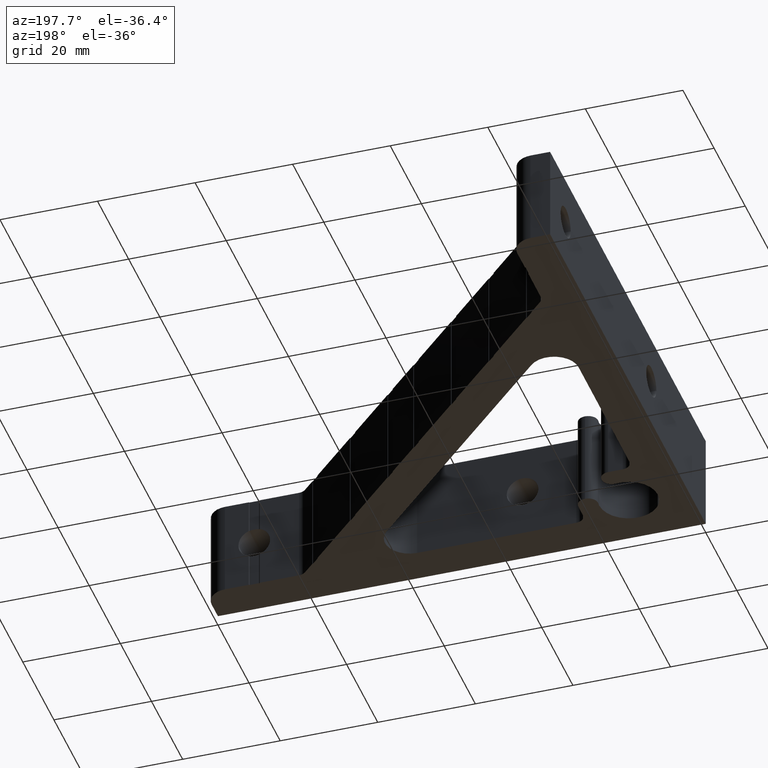
[diagram: clean part render]
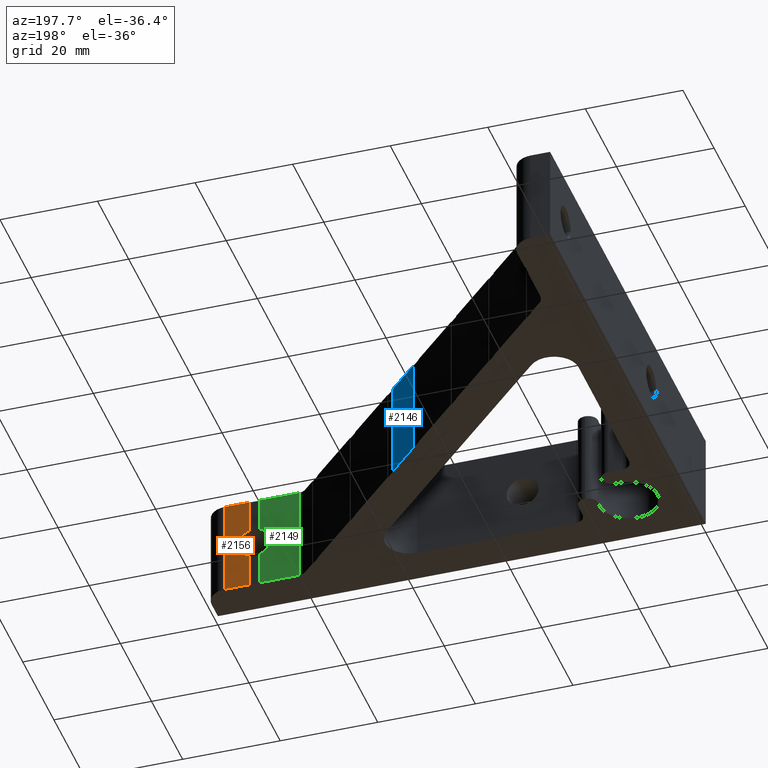
[diagram: same view with three faces highlighted in distinct colors, each labeled with its STEP entity id]
A machine part, auxiliary view with three faces highlighted in distinct colors.
Their STEP definitions:

[orange] entity #2156 — the highlighted planar face has unit normal (0, -1, 0).
#63 = CARTESIAN_POINT ( 'NONE',  ( 80.82842712474619900, 7.999999999999998200, 0.0000000000000000000 ) ) ;
#64 = DIRECTION ( 'NONE',  ( -1.000000000000000000, -1.143403844967386000E-016, -0.0000000000000000000 ) ) ;
#86 = CARTESIAN_POINT ( 'NONE',  ( 95.99999999999997200, 8.000000000000003600, 20.00000000000000000 ) ) ;
#87 = DIRECTION ( 'NONE',  ( -0.0000000000000000000, -0.0000000000000000000, -1.000000000000000000 ) ) ;
#167 = LINE ( 'NONE', #1129, #168 ) ;
#168 = VECTOR ( 'NONE', #1076, 1000.000000000000000 ) ;
#250 = LINE ( 'NONE', #2743, #251 ) ;
#251 = VECTOR ( 'NONE', #2749, 1000.000000000000000 ) ;
#301 = EDGE_CURVE ( 'NONE', #2441, #1903, #167, .T. ) ;
#403 = CIRCLE ( 'NONE', #665, 3.250000000000002700 ) ;
#518 = EDGE_LOOP ( 'NONE', ( #2660, #2661, #2494, #2495, #2496, #2497, #2498 ) ) ;
#665 = AXIS2_PLACEMENT_3D ( 'NONE', #2105, #2099, #2134 ) ;
#694 = CARTESIAN_POINT ( 'NONE',  ( 91.09999999999999400, 8.000000000000000000, 6.941814263325388100 ) ) ;
#695 = CARTESIAN_POINT ( 'NONE',  ( 91.09999999999999400, 8.000000000000000000, 20.00000000000000000 ) ) ;
#918 = FACE_OUTER_BOUND ( 'NONE', #518, .T. ) ;
#949 = CIRCLE ( 'NONE', #2864, 3.250000000000002700 ) ;
#984 = LINE ( 'NONE', #1581, #985 ) ;
#985 = VECTOR ( 'NONE', #1460, 1000.000000000000000 ) ;
#1076 = DIRECTION ( 'NONE',  ( -1.000000000000000000, -1.143403844967386000E-016, -0.0000000000000000000 ) ) ;
#1129 = CARTESIAN_POINT ( 'NONE',  ( 80.82842712474619900, 7.999999999999998200, 20.00000000000000000 ) ) ;
#1170 = EDGE_CURVE ( 'NONE', #1894, #1901, #250, .T. ) ;
#1460 = DIRECTION ( 'NONE',  ( 0.0000000000000000000, 0.0000000000000000000, 1.000000000000000000 ) ) ;
#1474 = DIRECTION ( 'NONE',  ( 1.000000000000000000, 1.143403844967386000E-016, 0.0000000000000000000 ) ) ;
#1478 = CARTESIAN_POINT ( 'NONE',  ( 80.82842712474619900, 7.999999999999998200, 20.00000000000000000 ) ) ;
#1513 = DIRECTION ( 'NONE',  ( 1.143403844967386000E-016, -1.000000000000000000, 0.0000000000000000000 ) ) ;
#1581 = CARTESIAN_POINT ( 'NONE',  ( 91.09999999999999400, 8.000000000000000000, 20.00000000000000000 ) ) ;
#1587 = DIRECTION ( 'NONE',  ( -1.000000000000000000, 0.0000000000000000000, 0.0000000000000000000 ) ) ;
#1592 = CARTESIAN_POINT ( 'NONE',  ( 95.99999999999997200, 8.000000000000003600, 0.0000000000000000000 ) ) ;
#1595 = CARTESIAN_POINT ( 'NONE',  ( 90.00000000000000000, 8.000000000000000000, 10.00000000000000000 ) ) ;
#1617 = PLANE ( 'NONE',  #1860 ) ;
#1620 = CARTESIAN_POINT ( 'NONE',  ( 95.99999999999997200, 8.000000000000003600, 20.00000000000000000 ) ) ;
#1644 = DIRECTION ( 'NONE',  ( -1.143403844967386000E-016, 1.000000000000000000, 0.0000000000000000000 ) ) ;
#1760 = CARTESIAN_POINT ( 'NONE',  ( 93.25000000000000000, 8.000000000000000000, 10.00000000000000000 ) ) ;
#1850 = VERTEX_POINT ( 'NONE', #1760 ) ;
#1860 = AXIS2_PLACEMENT_3D ( 'NONE', #1478, #1513, #1474 ) ;
#1894 = VERTEX_POINT ( 'NONE', #2776 ) ;
#1901 = VERTEX_POINT ( 'NONE', #694 ) ;
#1903 = VERTEX_POINT ( 'NONE', #695 ) ;
#1923 = VERTEX_POINT ( 'NONE', #2090 ) ;
#1958 = EDGE_CURVE ( 'NONE', #1850, #1901, #403, .T. ) ;
#2090 = CARTESIAN_POINT ( 'NONE',  ( 91.09999999999999400, 8.000000000000000000, 13.05818573667461300 ) ) ;
#2099 = DIRECTION ( 'NONE',  ( -1.143403844967386000E-016, 1.000000000000000000, 0.0000000000000000000 ) ) ;
#2105 = CARTESIAN_POINT ( 'NONE',  ( 90.00000000000000000, 8.000000000000000000, 10.00000000000000000 ) ) ;
#2134 = DIRECTION ( 'NONE',  ( -1.000000000000000000, 0.0000000000000000000, 0.0000000000000000000 ) ) ;
#2156 = ADVANCED_FACE ( 'NONE', ( #918 ), #1617, .F. ) ;
#2232 = LINE ( 'NONE', #63, #2233 ) ;
#2233 = VECTOR ( 'NONE', #64, 1000.000000000000000 ) ;
#2249 = LINE ( 'NONE', #86, #2250 ) ;
#2250 = VECTOR ( 'NONE', #87, 1000.000000000000000 ) ;
#2433 = VERTEX_POINT ( 'NONE', #1592 ) ;
#2441 = VERTEX_POINT ( 'NONE', #1620 ) ;
#2494 = ORIENTED_EDGE ( 'NONE', *, *, #2543, .F. ) ;
#2495 = ORIENTED_EDGE ( 'NONE', *, *, #2564, .T. ) ;
#2496 = ORIENTED_EDGE ( 'NONE', *, *, #301, .F. ) ;
#2497 = ORIENTED_EDGE ( 'NONE', *, *, #2617, .T. ) ;
#2498 = ORIENTED_EDGE ( 'NONE', *, *, #2607, .T. ) ;
#2543 = EDGE_CURVE ( 'NONE', #1923, #1850, #949, .T. ) ;
#2564 = EDGE_CURVE ( 'NONE', #1923, #1903, #984, .T. ) ;
#2607 = EDGE_CURVE ( 'NONE', #2433, #1894, #2232, .T. ) ;
#2617 = EDGE_CURVE ( 'NONE', #2441, #2433, #2249, .T. ) ;
#2660 = ORIENTED_EDGE ( 'NONE', *, *, #1170, .T. ) ;
#2661 = ORIENTED_EDGE ( 'NONE', *, *, #1958, .F. ) ;
#2743 = CARTESIAN_POINT ( 'NONE',  ( 91.09999999999999400, 8.000000000000000000, 20.00000000000000000 ) ) ;
#2749 = DIRECTION ( 'NONE',  ( 0.0000000000000000000, 0.0000000000000000000, 1.000000000000000000 ) ) ;
#2776 = CARTESIAN_POINT ( 'NONE',  ( 91.09999999999996600, 7.999999999999998200, 0.0000000000000000000 ) ) ;
#2864 = AXIS2_PLACEMENT_3D ( 'NONE', #1595, #1644, #1587 ) ;

[blue] entity #2146 — the highlighted planar face has unit normal (-0.7071, -0.7071, 0).
#8 = CARTESIAN_POINT ( 'NONE',  ( 8.585786437626911300, 79.41421356237306400, 20.00000000000000000 ) ) ;
#9 = DIRECTION ( 'NONE',  ( -0.7071067811865477900, 0.7071067811865473500, -0.0000000000000000000 ) ) ;
#195 = LINE ( 'NONE', #1300, #196 ) ;
#196 = VECTOR ( 'NONE', #1293, 1000.000000000000000 ) ;
#258 = LINE ( 'NONE', #2747, #260 ) ;
#260 = VECTOR ( 'NONE', #2741, 999.9999999999998900 ) ;
#316 = EDGE_CURVE ( 'NONE', #1931, #1067, #195, .T. ) ;
#415 = LINE ( 'NONE', #2118, #416 ) ;
#416 = VECTOR ( 'NONE', #2136, 1000.000000000000000 ) ;
#520 = EDGE_LOOP ( 'NONE', ( #2709, #2704, #1155, #1159 ) ) ;
#687 = CARTESIAN_POINT ( 'NONE',  ( 53.01669064519361300, 34.98330935480638000, 20.00000000000000000 ) ) ;
#905 = FACE_OUTER_BOUND ( 'NONE', #520, .T. ) ;
#1036 = VERTEX_POINT ( 'NONE', #1277 ) ;
#1067 = VERTEX_POINT ( 'NONE', #1238 ) ;
#1155 = ORIENTED_EDGE ( 'NONE', *, *, #1178, .T. ) ;
#1159 = ORIENTED_EDGE ( 'NONE', *, *, #316, .T. ) ;
#1178 = EDGE_CURVE ( 'NONE', #1036, #1931, #258, .T. ) ;
#1238 = CARTESIAN_POINT ( 'NONE',  ( 46.79415097075197100, 41.20584902924802200, 20.00000000000000000 ) ) ;
#1277 = CARTESIAN_POINT ( 'NONE',  ( 53.01669064519360600, 34.98330935480639400, 0.0000000000000000000 ) ) ;
#1293 = DIRECTION ( 'NONE',  ( 0.0000000000000000000, 0.0000000000000000000, 1.000000000000000000 ) ) ;
#1300 = CARTESIAN_POINT ( 'NONE',  ( 46.79415097075197100, 41.20584902924801400, 20.00000000000000000 ) ) ;
#1498 = PLANE ( 'NONE',  #1840 ) ;
#1541 = CARTESIAN_POINT ( 'NONE',  ( 8.585786437626911300, 79.41421356237306400, 20.00000000000000000 ) ) ;
#1543 = DIRECTION ( 'NONE',  ( 0.7071067811865477900, -0.7071067811865473500, 0.0000000000000000000 ) ) ;
#1563 = DIRECTION ( 'NONE',  ( -0.7071067811865473500, -0.7071067811865477900, 0.0000000000000000000 ) ) ;
#1840 = AXIS2_PLACEMENT_3D ( 'NONE', #1541, #1563, #1543 ) ;
#1905 = VERTEX_POINT ( 'NONE', #687 ) ;
#1931 = VERTEX_POINT ( 'NONE', #2393 ) ;
#1994 = EDGE_CURVE ( 'NONE', #1905, #1036, #415, .T. ) ;
#2118 = CARTESIAN_POINT ( 'NONE',  ( 53.01669064519361300, 34.98330935480638000, 20.00000000000000000 ) ) ;
#2136 = DIRECTION ( 'NONE',  ( 0.0000000000000000000, 0.0000000000000000000, -1.000000000000000000 ) ) ;
#2146 = ADVANCED_FACE ( 'NONE', ( #905 ), #1498, .F. ) ;
#2183 = LINE ( 'NONE', #8, #2184 ) ;
#2184 = VECTOR ( 'NONE', #9, 999.9999999999998900 ) ;
#2393 = CARTESIAN_POINT ( 'NONE',  ( 46.79415097075197800, 41.20584902924801400, 0.0000000000000000000 ) ) ;
#2581 = EDGE_CURVE ( 'NONE', #1905, #1067, #2183, .T. ) ;
#2704 = ORIENTED_EDGE ( 'NONE', *, *, #1994, .T. ) ;
#2709 = ORIENTED_EDGE ( 'NONE', *, *, #2581, .F. ) ;
#2741 = DIRECTION ( 'NONE',  ( -0.7071067811865477900, 0.7071067811865473500, -0.0000000000000000000 ) ) ;
#2747 = CARTESIAN_POINT ( 'NONE',  ( 8.585786437626911300, 79.41421356237306400, 0.0000000000000000000 ) ) ;

[green] entity #2149 — the highlighted planar face has unit normal (0, -1, 0).
#256 = LINE ( 'NONE', #2736, #257 ) ;
#257 = VECTOR ( 'NONE', #2750, 1000.000000000000000 ) ;
#265 = CIRCLE ( 'NONE', #2722, 3.250000000000002700 ) ;
#278 = LINE ( 'NONE', #1330, #279 ) ;
#279 = VECTOR ( 'NONE', #1335, 1000.000000000000000 ) ;
#427 = CIRCLE ( 'NONE', #681, 3.250000000000002700 ) ;
#435 = LINE ( 'NONE', #2051, #436 ) ;
#436 = VECTOR ( 'NONE', #2059, 1000.000000000000000 ) ;
#437 = LINE ( 'NONE', #2054, #438 ) ;
#438 = VECTOR ( 'NONE', #2058, 1000.000000000000000 ) ;
#478 = EDGE_LOOP ( 'NONE', ( #709, #710, #711, #712, #713, #714, #715 ) ) ;
#681 = AXIS2_PLACEMENT_3D ( 'NONE', #2791, #2790, #2792 ) ;
#689 = CARTESIAN_POINT ( 'NONE',  ( 88.90000000000002000, 8.000000000000000000, 6.941814263325378300 ) ) ;
#709 = ORIENTED_EDGE ( 'NONE', *, *, #1190, .T. ) ;
#710 = ORIENTED_EDGE ( 'NONE', *, *, #2000, .F. ) ;
#711 = ORIENTED_EDGE ( 'NONE', *, *, #1182, .F. ) ;
#712 = ORIENTED_EDGE ( 'NONE', *, *, #2560, .T. ) ;
#713 = ORIENTED_EDGE ( 'NONE', *, *, #2006, .T. ) ;
#714 = ORIENTED_EDGE ( 'NONE', *, *, #1174, .F. ) ;
#715 = ORIENTED_EDGE ( 'NONE', *, *, #2007, .F. ) ;
#908 = FACE_OUTER_BOUND ( 'NONE', #478, .T. ) ;
#976 = LINE ( 'NONE', #1454, #977 ) ;
#977 = VECTOR ( 'NONE', #1467, 1000.000000000000000 ) ;
#1018 = VERTEX_POINT ( 'NONE', #1210 ) ;
#1174 = EDGE_CURVE ( 'NONE', #1018, #2438, #256, .T. ) ;
#1182 = EDGE_CURVE ( 'NONE', #1909, #1849, #265, .T. ) ;
#1190 = EDGE_CURVE ( 'NONE', #1870, #1929, #278, .T. ) ;
#1210 = CARTESIAN_POINT ( 'NONE',  ( 80.82842712474619900, 7.999999999999998200, 20.00000000000000000 ) ) ;
#1330 = CARTESIAN_POINT ( 'NONE',  ( 88.90000000000002000, 8.000000000000000000, 20.00000000000000000 ) ) ;
#1331 = DIRECTION ( 'NONE',  ( -1.143403844967386000E-016, 1.000000000000000000, 0.0000000000000000000 ) ) ;
#1335 = DIRECTION ( 'NONE',  ( 0.0000000000000000000, 0.0000000000000000000, -1.000000000000000000 ) ) ;
#1350 = DIRECTION ( 'NONE',  ( -1.000000000000000000, 0.0000000000000000000, 0.0000000000000000000 ) ) ;
#1356 = CARTESIAN_POINT ( 'NONE',  ( 90.00000000000000000, 8.000000000000000000, 10.00000000000000000 ) ) ;
#1442 = CARTESIAN_POINT ( 'NONE',  ( 80.82842712474619900, 7.999999999999998200, 0.0000000000000000000 ) ) ;
#1454 = CARTESIAN_POINT ( 'NONE',  ( 88.90000000000002000, 8.000000000000000000, 20.00000000000000000 ) ) ;
#1463 = CARTESIAN_POINT ( 'NONE',  ( 80.82842712474619900, 7.999999999999998200, 20.00000000000000000 ) ) ;
#1467 = DIRECTION ( 'NONE',  ( 0.0000000000000000000, 0.0000000000000000000, -1.000000000000000000 ) ) ;
#1577 = CARTESIAN_POINT ( 'NONE',  ( 88.90000000000006300, 7.999999999999989300, 0.0000000000000000000 ) ) ;
#1615 = PLANE ( 'NONE',  #1839 ) ;
#1618 = DIRECTION ( 'NONE',  ( 1.000000000000000000, 1.143403844967386000E-016, 0.0000000000000000000 ) ) ;
#1619 = DIRECTION ( 'NONE',  ( 1.143403844967386000E-016, -1.000000000000000000, 0.0000000000000000000 ) ) ;
#1761 = CARTESIAN_POINT ( 'NONE',  ( 86.75000000000000000, 8.000000000000000000, 10.00000000000000000 ) ) ;
#1839 = AXIS2_PLACEMENT_3D ( 'NONE', #1463, #1619, #1618 ) ;
#1849 = VERTEX_POINT ( 'NONE', #1761 ) ;
#1870 = VERTEX_POINT ( 'NONE', #2778 ) ;
#1909 = VERTEX_POINT ( 'NONE', #689 ) ;
#1929 = VERTEX_POINT ( 'NONE', #2385 ) ;
#2000 = EDGE_CURVE ( 'NONE', #1849, #1929, #427, .T. ) ;
#2006 = EDGE_CURVE ( 'NONE', #2427, #2438, #435, .T. ) ;
#2007 = EDGE_CURVE ( 'NONE', #1870, #1018, #437, .T. ) ;
#2051 = CARTESIAN_POINT ( 'NONE',  ( 80.82842712474619900, 7.999999999999998200, 0.0000000000000000000 ) ) ;
#2054 = CARTESIAN_POINT ( 'NONE',  ( 80.82842712474619900, 7.999999999999998200, 20.00000000000000000 ) ) ;
#2058 = DIRECTION ( 'NONE',  ( -1.000000000000000000, -1.143403844967386000E-016, -0.0000000000000000000 ) ) ;
#2059 = DIRECTION ( 'NONE',  ( -1.000000000000000000, -1.143403844967386000E-016, -0.0000000000000000000 ) ) ;
#2149 = ADVANCED_FACE ( 'NONE', ( #908 ), #1615, .F. ) ;
#2385 = CARTESIAN_POINT ( 'NONE',  ( 88.90000000000002000, 8.000000000000000000, 13.05818573667462200 ) ) ;
#2427 = VERTEX_POINT ( 'NONE', #1577 ) ;
#2438 = VERTEX_POINT ( 'NONE', #1442 ) ;
#2560 = EDGE_CURVE ( 'NONE', #1909, #2427, #976, .T. ) ;
#2722 = AXIS2_PLACEMENT_3D ( 'NONE', #1356, #1331, #1350 ) ;
#2736 = CARTESIAN_POINT ( 'NONE',  ( 80.82842712474619900, 7.999999999999998200, 20.00000000000000000 ) ) ;
#2750 = DIRECTION ( 'NONE',  ( -0.0000000000000000000, -0.0000000000000000000, -1.000000000000000000 ) ) ;
#2778 = CARTESIAN_POINT ( 'NONE',  ( 88.90000000000002000, 8.000000000000000000, 20.00000000000000000 ) ) ;
#2790 = DIRECTION ( 'NONE',  ( -1.143403844967386000E-016, 1.000000000000000000, 0.0000000000000000000 ) ) ;
#2791 = CARTESIAN_POINT ( 'NONE',  ( 90.00000000000000000, 8.000000000000000000, 10.00000000000000000 ) ) ;
#2792 = DIRECTION ( 'NONE',  ( -1.000000000000000000, 0.0000000000000000000, 0.0000000000000000000 ) ) ;